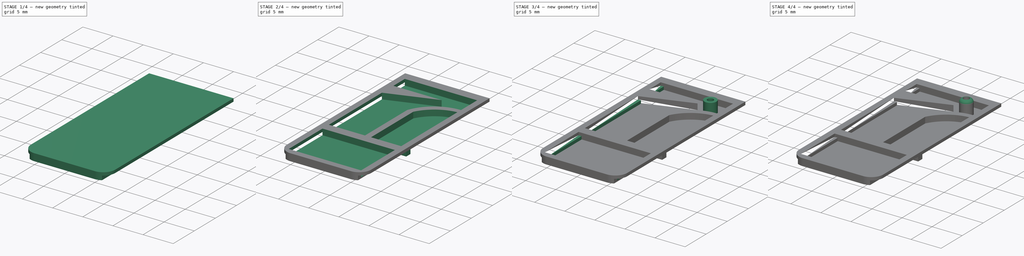
[diagram: build sequence overview — one tinted view per stage of 4, left to right]
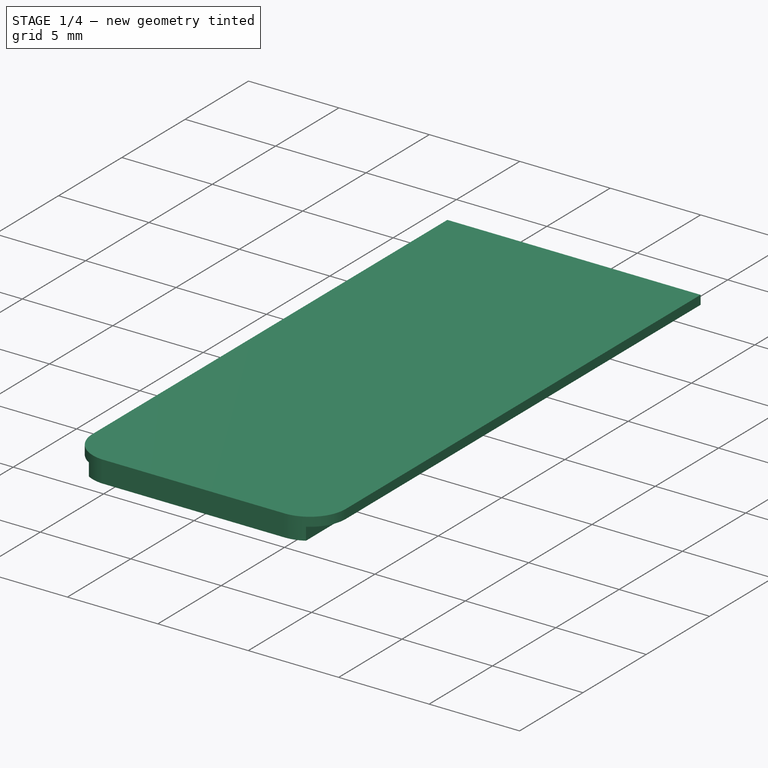
[diagram: stage 1 of 4 — iso view after this stage's code; geometry added in this stage tinted green]
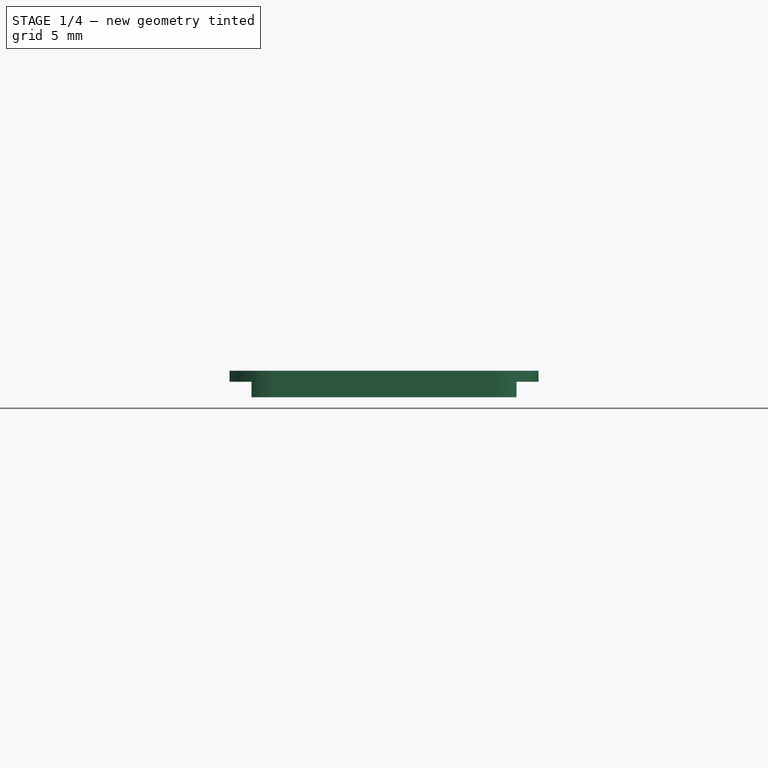
[diagram: stage 1 of 4 — front view after this stage's code; geometry added in this stage tinted green]
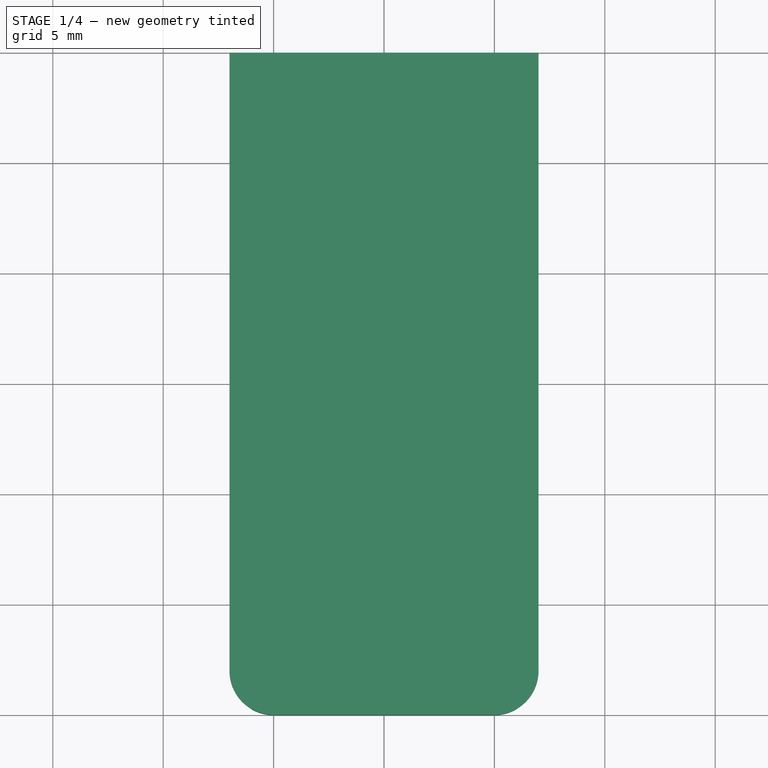
[diagram: stage 1 of 4 — top view after this stage's code; geometry added in this stage tinted green]
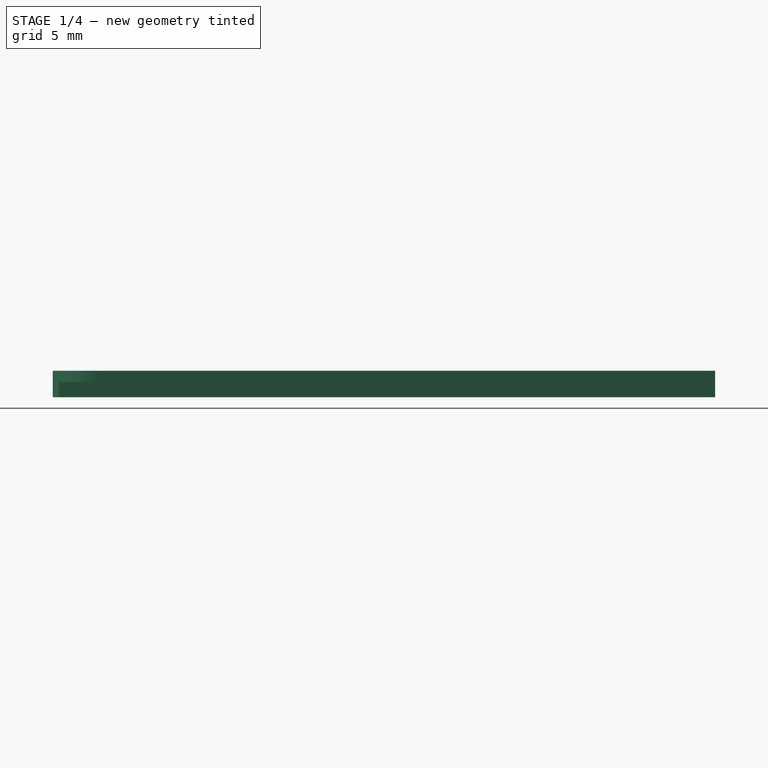
[diagram: stage 1 of 4 — right view after this stage's code; geometry added in this stage tinted green]
FCSTD DOCUMENT  (FreeCAD 1.0R39285 (Git))
Label: Pieza pequeña
License: All rights reserved
LicenseURL: https://en.wikipedia.org/wiki/All_rights_reserved
objects: Sketcher::SketchObject×7, PartDesign::Pad×5, PartDesign::Plane×4, PartDesign::Fillet×1, PartDesign::Pocket×1, PartDesign::Mirrored×1, PartDesign::Revolution×1, PartDesign::Body×1
note: 45 computed .brp shape members not serialized (recipe doc carries the construction recipe); baked Part::Feature solids carry a one-line shape summary decoded from their .brp

FEATURE [Sketcher::SketchObject] Sketch
  ArcFitTolerance = 1e-06
  AttachmentSupport = -> [XZ_Plane]
  FullyConstrained = true
  MakeInternals = false
  MapMode = 5
  Placement = pos=(0,0,0) rot=(1,0,0;1.5708rad)
  sketch-geometry (13):
    g0: LineSegment StartX=-6 StartY=-0.6 StartZ=0 EndX=6 EndY=-0.6 EndZ=0
    g1: LineSegment StartX=6 StartY=-0.6 StartZ=0 EndX=6 EndY=0.6 EndZ=0
    g2: LineSegment StartX=6 StartY=0.6 StartZ=0 EndX=-6 EndY=0.6 EndZ=0
    g3: LineSegment StartX=-6 StartY=0.6 StartZ=0 EndX=-6 EndY=-0.6 EndZ=0
    g4: GeomPoint [constr] X=0 Y=0 Z=0
    g5: LineSegment StartX=6 StartY=0.6 StartZ=0 EndX=6 EndY=0.1 EndZ=0
    g6: LineSegment StartX=6 StartY=0.1 StartZ=0 EndX=7 EndY=0.1 EndZ=0
    g7: LineSegment StartX=7 StartY=0.1 StartZ=0 EndX=7 EndY=0.6 EndZ=0
    g8: LineSegment StartX=7 StartY=0.6 StartZ=0 EndX=6 EndY=0.6 EndZ=0
    g9: LineSegment StartX=-6 StartY=0.6 StartZ=0 EndX=-7 EndY=0.6 EndZ=0
    g10: LineSegment StartX=-7 StartY=0.6 StartZ=0 EndX=-7 EndY=0.1 EndZ=0
    g11: LineSegment StartX=-7 StartY=0.1 StartZ=0 EndX=-6 EndY=0.1 EndZ=0
    g12: LineSegment StartX=-6 StartY=0.1 StartZ=0 EndX=-6 EndY=0.6 EndZ=0
  constraints (35):
    c: Coincident(g0,g1)
    c: Coincident(g1,g2)
    c: Coincident(g3,g0)
    c: Horizontal(g0)
    c: Horizontal(g2)
    c: Vertical(g1)
    c: Vertical(g3)
    c: Symmetric(g2,g0,g4)
    c: Coincident(g4,g-1)
    c: DistanceX(g0,g0) = 12
    c: Distance(g0,g2) = 1.2
    c: Coincident(g5,g6)
    c: Coincident(g6,g7)
    c: Coincident(g7,g8)
    c: Coincident(g8,g5)
    c: Vertical(g5)
    c: Vertical(g7)
    c: Horizontal(g6)
    c: Horizontal(g8)
    c: Distance(g5,g7) = 1
    c: Distance(g6,g8) = 0.5
    c: Coincident(g5,g1)
    c: Coincident(g9,g10)
    c: Coincident(g10,g11)
    c: Coincident(g11,g12)
    c: Coincident(g12,g9)
    c: Horizontal(g9)
    c: Horizontal(g11)
    c: Vertical(g10)
    c: Vertical(g12)
    c: Distance(g10,g12) = 1
    c: Distance(g9,g11) = 0.5
    c: Coincident(g9,g2)
    c: Distance(g6,g10) = 14
    c: DistanceY(g3,g3) = 1.2
FEATURE [PartDesign::Pad] Pad
  Direction = (0,-1,2e-16)
  Length = 30
  Length2 = 10
  Midplane = true
  Placement = pos=(0,0,0) rot=(1,0,0;1.5708rad)
  Profile = -> Sketch
  ReferenceAxis = -> Sketch [N_Axis]
  Refine = true
  Suppressed = false
  Type = 0
FEATURE [PartDesign::Fillet] Fillet
  Base = -> Pad [Edge10,Edge17]
  BaseFeature = -> Pad
  Placement = pos=(0,0,0) rot=(1,0,0;1.5708rad)
  Radius = 2
  Refine = true
  SupportTransform = false
  Suppressed = false
  UseAllEdges = false
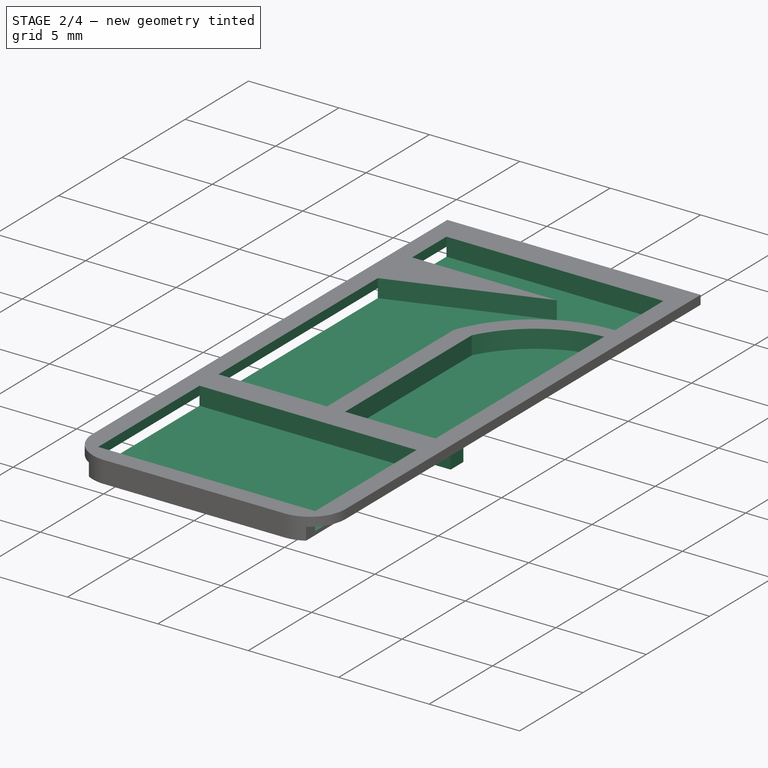
[diagram: stage 2 of 4 — iso view after this stage's code; geometry added in this stage tinted green]
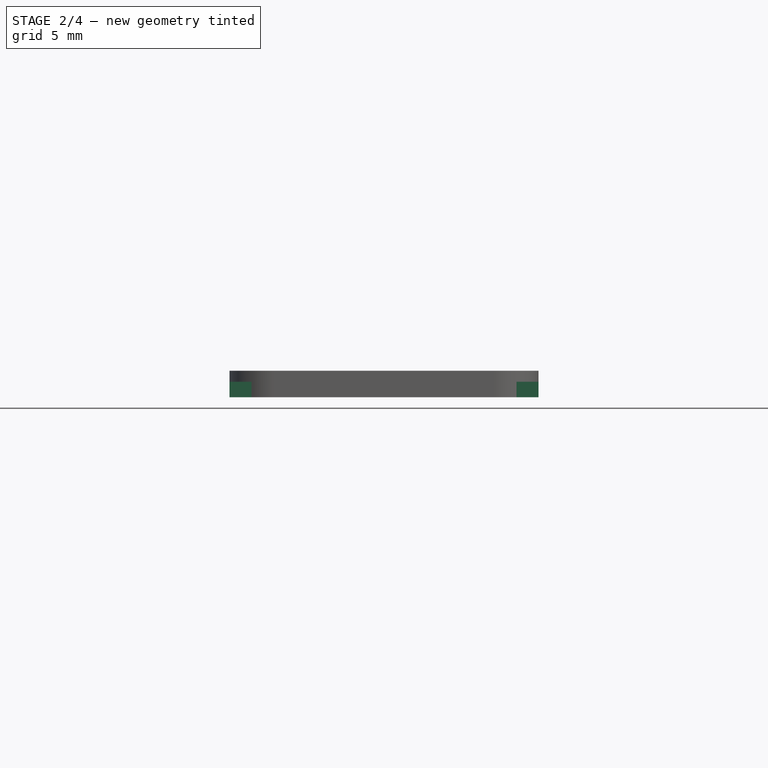
[diagram: stage 2 of 4 — front view after this stage's code; geometry added in this stage tinted green]
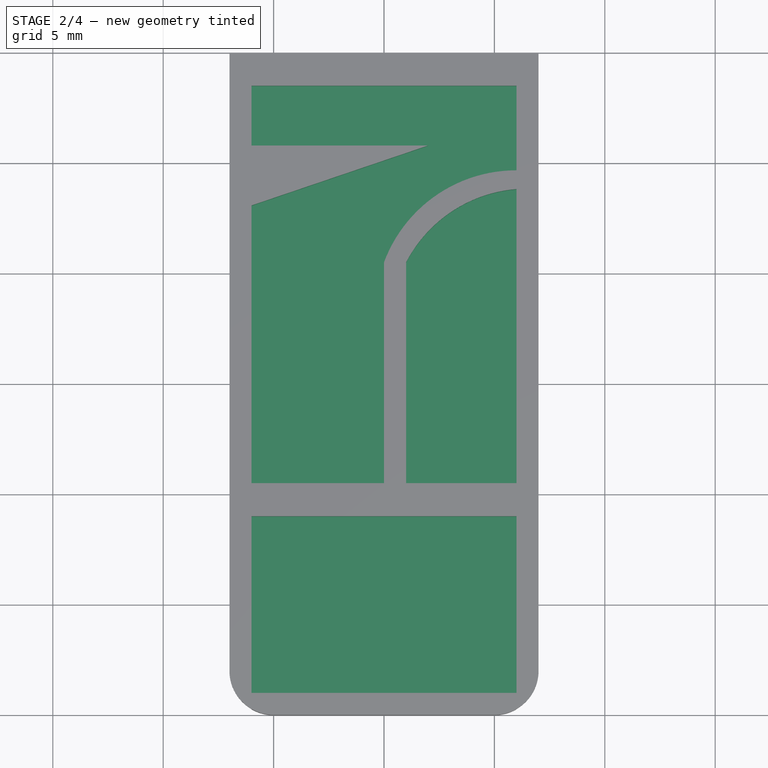
[diagram: stage 2 of 4 — top view after this stage's code; geometry added in this stage tinted green]
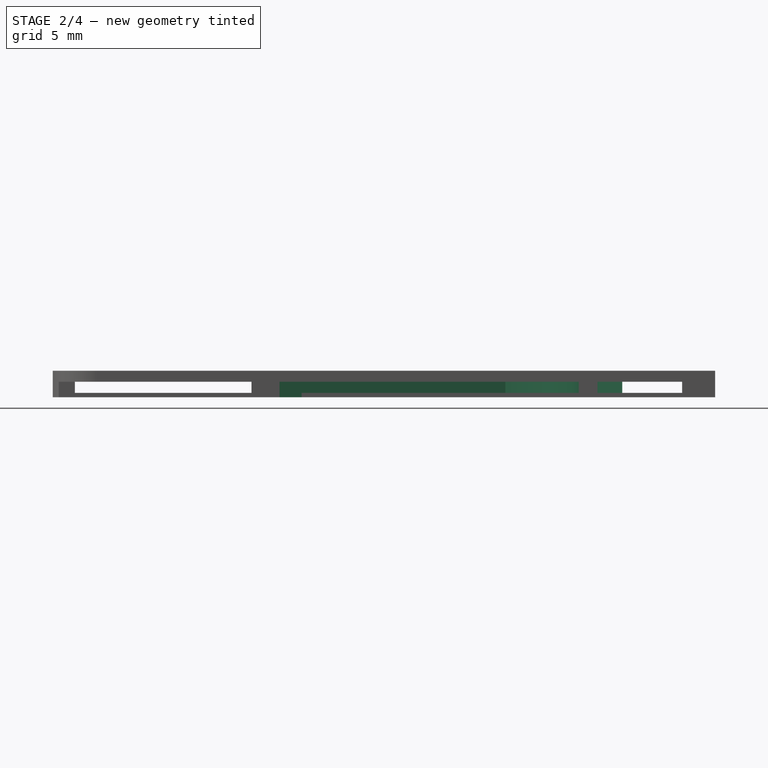
[diagram: stage 2 of 4 — right view after this stage's code; geometry added in this stage tinted green]
FEATURE [PartDesign::Plane] DatumPlane
  AttachmentSupport = -> [Fillet]
  Length = 60
  MapMode = 5
  Placement = pos=(0,0,0.1) rot=(1,0,0;3.14159rad)
  ResizeMode = 0
  Width = 60
FEATURE [Sketcher::SketchObject] Sketch001
  ArcFitTolerance = 1e-06
  AttachmentSupport = -> [DatumPlane]
  ExternalGeometry = -> [Fillet]
  FullyConstrained = true
  MakeInternals = false
  MapMode = 5
  Placement = pos=(0,0,0.1) rot=(1,0,0;3.14159rad)
  sketch-geometry (8):
    g0: LineSegment StartX=-6 StartY=4.73205 StartZ=0 EndX=-6 EndY=3.73205 EndZ=0
    g1: LineSegment StartX=-6 StartY=3.73205 StartZ=0 EndX=-7 EndY=3.73205 EndZ=0
    g2: LineSegment StartX=-7 StartY=3.73205 StartZ=0 EndX=-7 EndY=4.73205 EndZ=0
    g3: LineSegment StartX=-7 StartY=4.73205 StartZ=0 EndX=-6 EndY=4.73205 EndZ=0
    g4: LineSegment StartX=6 StartY=4.73205 StartZ=0 EndX=6 EndY=3.73205 EndZ=0
    g5: LineSegment StartX=6 StartY=3.73205 StartZ=0 EndX=7 EndY=3.73205 EndZ=0
    g6: LineSegment StartX=7 StartY=3.73205 StartZ=0 EndX=7 EndY=4.73205 EndZ=0
    g7: LineSegment StartX=7 StartY=4.73205 StartZ=0 EndX=6 EndY=4.73205 EndZ=0
  constraints (24):
    c: Coincident(g0,g1)
    c: Coincident(g1,g2)
    c: Coincident(g2,g3)
    c: Coincident(g3,g0)
    c: Vertical(g0)
    c: Vertical(g2)
    c: Horizontal(g1)
    c: Horizontal(g3)
    c: Distance(g0,g2) = 1
    c: Distance(g1,g3) = 1
    c: PointOnObject(g0,g-3)
    c: Distance(g-3,g1) = 11
    c: Coincident(g4,g5)
    c: Coincident(g5,g6)
    c: Coincident(g6,g7)
    c: Coincident(g7,g4)
    c: Vertical(g4)
    c: Vertical(g6)
    c: Horizontal(g5)
    c: Horizontal(g7)
    c: Distance(g4,g6) = 1
    c: Distance(g5,g7) = 1
    c: Distance(g-5,g7) = 10
    c: Distance(g-2,g4) = 6
FEATURE [PartDesign::Pad] Pad001
  BaseFeature = -> Fillet
  Direction = (0,0,-1)
  Length = 10
  Length2 = 10
  Placement = pos=(0,0,0) rot=(1,0,0;1.5708rad)
  Profile = -> Sketch001
  ReferenceAxis = -> Sketch001 [N_Axis]
  Refine = true
  Suppressed = false
  Type = 3
  UpToFace = -> Fillet [Face2]
FEATURE [Sketcher::SketchObject] Sketch002
  ArcFitTolerance = 1e-06
  AttachmentSupport = -> [Pad001]
  ExternalGeometry = -> [Pad001]
  FullyConstrained = false
  MakeInternals = false
  MapMode = 5
  Placement = pos=(0,3e-16,0.6) rot=(0,0,1;3.14159rad)
  sketch-geometry (19):
    g0: LineSegment StartX=-6 StartY=14 StartZ=0 EndX=-6 EndY=6 EndZ=0
    g1: LineSegment StartX=-6 StartY=6 StartZ=0 EndX=6 EndY=6 EndZ=0
    g2: LineSegment StartX=6 StartY=6 StartZ=0 EndX=6 EndY=14 EndZ=0
    g3: LineSegment StartX=6 StartY=14 StartZ=0 EndX=-6 EndY=14 EndZ=0
    g4: LineSegment [constr] StartX=-6 StartY=6 StartZ=0 EndX=-6 EndY=4.5 EndZ=0
    g5: LineSegment StartX=-6 StartY=4.5 StartZ=0 EndX=-6 EndY=-8.82 EndZ=0
    g6: LineSegment StartX=-6 StartY=-13.5 StartZ=0 EndX=6 EndY=-13.5 EndZ=0
    g7: LineSegment StartX=6 StartY=-13.5 StartZ=0 EndX=6 EndY=-10.7926 EndZ=0
    g8: LineSegment StartX=-1 StartY=4.5 StartZ=0 EndX=-1 EndY=-5.5 EndZ=0
    g9: ArcOfCircle CenterX=-6.49471 CenterY=-2.64989 CenterZ=0 NormalX=0 NormalY=0 NormalZ=1 AngleXU=0 Radius=6.18991 StartAngle=4.7924 EndAngle=5.80469
    g10: LineSegment StartX=-8.9e-15 StartY=4.5 StartZ=0 EndX=-8.9e-15 EndY=-5.5 EndZ=0
    g11: LineSegment [constr] StartX=-6 StartY=-9.67 StartZ=0 EndX=-6 EndY=-9.82111 EndZ=0
    g12: ArcOfCircle CenterX=-5.99334 CenterY=-3.27804 CenterZ=0 NormalX=0 NormalY=0 NormalZ=1 AngleXU=0 Radius=6.39197 StartAngle=4.71135 EndAngle=5.92816
    g13: LineSegment StartX=-6 StartY=-9.67 StartZ=0 EndX=-6 EndY=-13.5 EndZ=0
    g14: LineSegment StartX=6 StartY=-10.7926 StartZ=0 EndX=-2 EndY=-10.7926 EndZ=0
    g15: LineSegment StartX=6 StartY=-8.07733 StartZ=0 EndX=-2 EndY=-10.7926 EndZ=0
    g16: LineSegment StartX=6 StartY=-8.07733 StartZ=0 EndX=6 EndY=4.5 EndZ=0
    g17: LineSegment StartX=-6 StartY=4.5 StartZ=0 EndX=-1 EndY=4.5 EndZ=0
    g18: LineSegment StartX=-8.9e-15 StartY=4.5 StartZ=0 EndX=6 EndY=4.5 EndZ=0
  constraints (49):
    c: Coincident(g0,g1)
    c: Coincident(g1,g2)
    c: Coincident(g2,g3)
    c: Coincident(g3,g0)
    c: Vertical(g0)
    c: Vertical(g2)
    c: Horizontal(g1)
    c: Horizontal(g3)
    c: Distance(g-3,g3) = 1
    c: DistanceX(g1,g1) = 12
    c: Distance(g-2,g2) = 6
    c: DistanceY(g0,g0) = 8
    c: Distance(g4) = 1.5
    c: Coincident(g4,g0)
    c: Vertical(g4)
    c: Coincident(g13,g6)
    c: Coincident(g6,g7)
    c: Vertical(g5)
    c: Vertical(g7)
    c: Horizontal(g6)
    c: Distance(g5,g16) = 12
    c: Distance(g6,g5) = 18
    c: Coincident(g5,g4)
    c: Distance(g8) = 10
    c: Distance(g10) = 10
    c: Distance(g10,g8) = 1
    c: Vertical(g10)
    c: Vertical(g8)
    c: Distance(g-2,g8) = 1
    c: PointOnObject(g11,g13)
    c: Vertical(g11)
    c: Coincident(g12,g10)
    c: PointOnObject(g12,g13)
    c: Coincident(g9,g8)
    c: PointOnObject(g5,g9)
    c: PointOnObject(g13,g12)
    c: PointOnObject(g11,g12)
    c: Distance(g14) = 8
    c: Coincident(g7,g14)
    c: PointOnObject(g16,g15)
    c: Coincident(g17,g4)
    c: Coincident(g17,g8)
    c: Horizontal(g17)
    c: Coincident(g18,g10)
    c: Coincident(g18,g16)
    c: Horizontal(g18)
    c: DistanceY(g5,g5) = 13.32
    c: DistanceX(g6,g6) = 12
    c: Distance(g13,g13) = 3.83
FEATURE [PartDesign::Pocket] Pocket
  BaseFeature = -> Pad001
  Direction = (0,0,-1)
  Length = 1
  Length2 = 5
  Placement = pos=(0,0,0) rot=(1,0,0;1.5708rad)
  Profile = -> Sketch002
  ReferenceAxis = -> Sketch002 [N_Axis]
  Refine = true
  Suppressed = false
  Type = 0
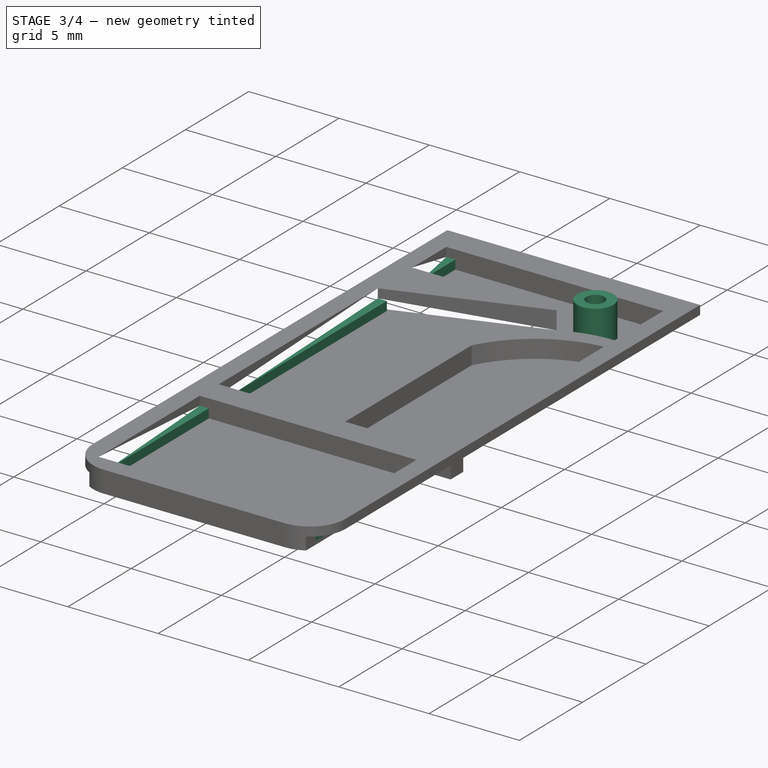
[diagram: stage 3 of 4 — iso view after this stage's code; geometry added in this stage tinted green]
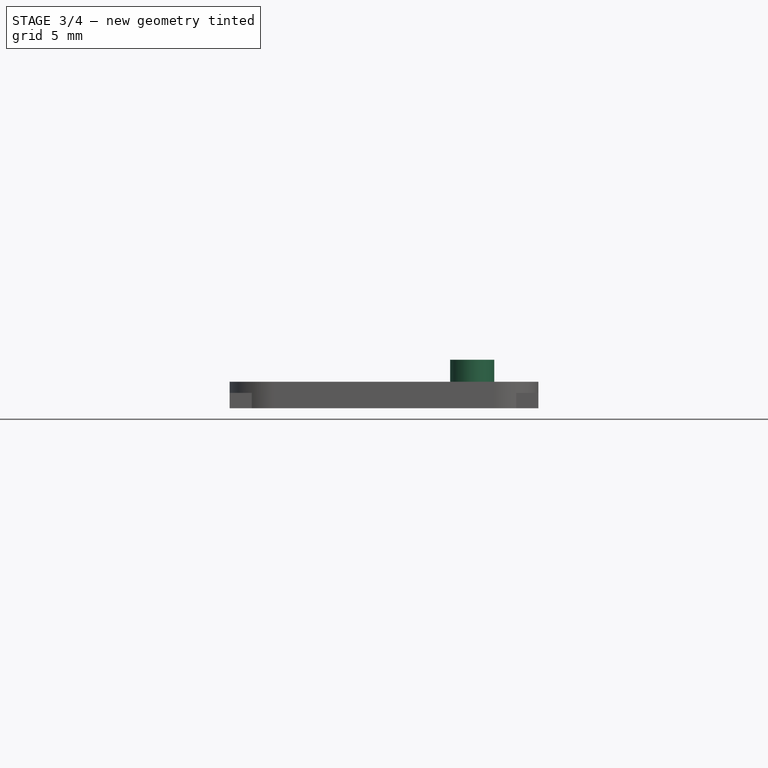
[diagram: stage 3 of 4 — front view after this stage's code; geometry added in this stage tinted green]
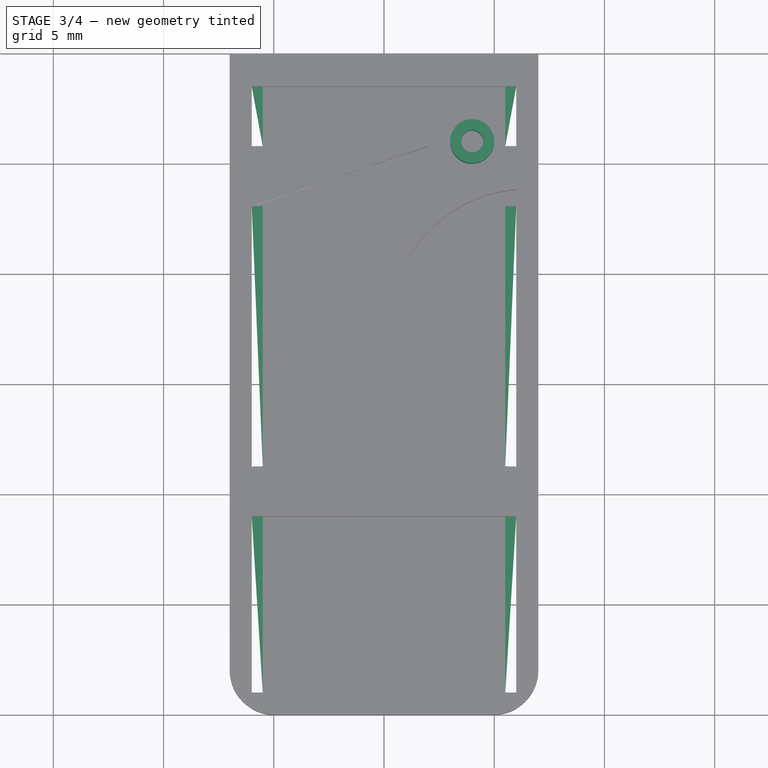
[diagram: stage 3 of 4 — top view after this stage's code; geometry added in this stage tinted green]
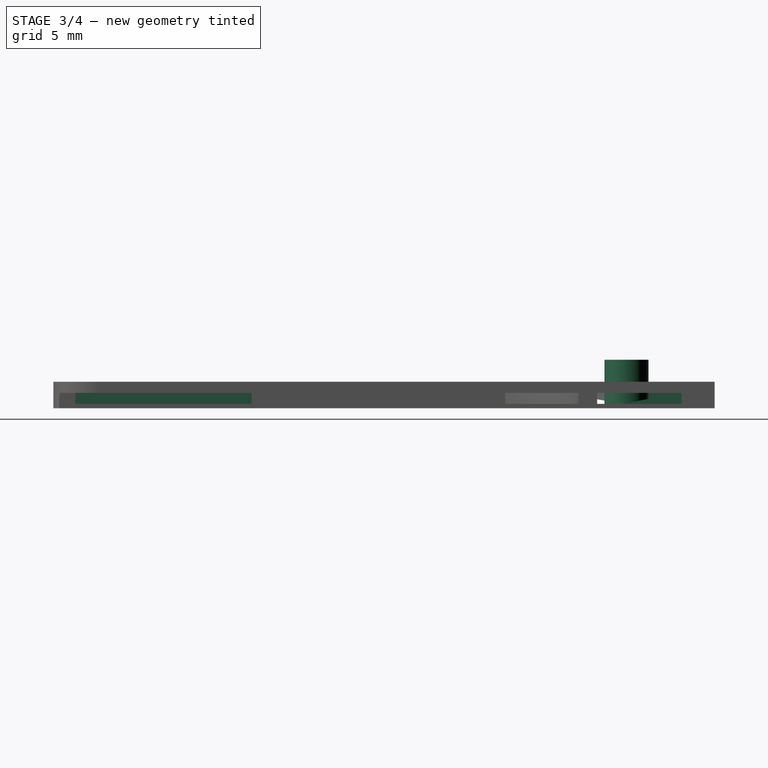
[diagram: stage 3 of 4 — right view after this stage's code; geometry added in this stage tinted green]
FEATURE [PartDesign::Plane] DatumPlane001
  AttachmentSupport = -> [Pocket]
  Length = 60
  MapMode = 5
  Placement = pos=(-6,0,0) rot=(0.707107,0,0.707107;3.14159rad)
  ResizeMode = 0
  Width = 60
FEATURE [Sketcher::SketchObject] Sketch003
  ArcFitTolerance = 1e-06
  AttachmentSupport = -> [Pocket]
  ExternalGeometry = -> [Pocket]
  FullyConstrained = true
  MakeInternals = false
  MapMode = 5
  Placement = pos=(-6,0,0) rot=(0.707107,0,0.707107;3.14159rad)
  sketch-geometry (12):
    g0: LineSegment StartX=-0.4 StartY=14 StartZ=0 EndX=-0.4 EndY=6 EndZ=0
    g1: LineSegment StartX=-0.4 StartY=6 StartZ=0 EndX=0.1 EndY=6 EndZ=0
    g2: LineSegment StartX=0.1 StartY=6 StartZ=0 EndX=0.1 EndY=14 EndZ=0
    g3: LineSegment StartX=0.1 StartY=14 StartZ=0 EndX=-0.4 EndY=14 EndZ=0
    g4: LineSegment StartX=-0.4 StartY=-10.7926 StartZ=0 EndX=-0.4 EndY=-13.5 EndZ=0
    g5: LineSegment StartX=-0.4 StartY=-13.5 StartZ=0 EndX=0.1 EndY=-13.5 EndZ=0
    g6: LineSegment StartX=0.1 StartY=-13.5 StartZ=0 EndX=0.1 EndY=-10.7926 EndZ=0
    g7: LineSegment StartX=0.1 StartY=-10.7926 StartZ=0 EndX=-0.4 EndY=-10.7926 EndZ=0
    g8: LineSegment StartX=0.1 StartY=-8.07733 StartZ=0 EndX=0.1 EndY=3.73205 EndZ=0
    g9: LineSegment StartX=0.1 StartY=3.73205 StartZ=0 EndX=-0.4 EndY=3.73205 EndZ=0
    g10: LineSegment StartX=-0.4 StartY=3.73205 StartZ=0 EndX=-0.4 EndY=-8.07733 EndZ=0
    g11: LineSegment StartX=-0.4 StartY=-8.07733 StartZ=0 EndX=0.1 EndY=-8.07733 EndZ=0
  constraints (30):
    c: Coincident(g0,g1)
    c: Coincident(g1,g2)
    c: Coincident(g2,g3)
    c: Coincident(g3,g0)
    c: Vertical(g0)
    c: Vertical(g2)
    c: Horizontal(g1)
    c: Horizontal(g3)
    c: Coincident(g0,g-4)
    c: Coincident(g1,g-6)
    c: Coincident(g4,g5)
    c: Coincident(g5,g6)
    c: Coincident(g6,g7)
    c: Coincident(g7,g4)
    c: Vertical(g4)
    c: Vertical(g6)
    c: Horizontal(g5)
    c: Horizontal(g7)
    c: Coincident(g4,g-12)
    c: Coincident(g5,g-14)
    c: Coincident(g8,g9)
    c: Coincident(g9,g10)
    c: Coincident(g10,g11)
    c: Coincident(g11,g8)
    c: Vertical(g8)
    c: Vertical(g10)
    c: Horizontal(g9)
    c: Horizontal(g11)
    c: Coincident(g8,g-10)
    c: Coincident(g9,g-9)
FEATURE [PartDesign::Pad] Pad002
  BaseFeature = -> Pocket
  Direction = (1,0,-2e-16)
  Length = 0.5
  Length2 = 10
  Placement = pos=(0,0,0) rot=(1,0,0;1.5708rad)
  Profile = -> Sketch003
  ReferenceAxis = -> Sketch003 [N_Axis]
  Refine = true
  Suppressed = false
  Type = 0
FEATURE [PartDesign::Mirrored] Mirrored
  BaseFeature = -> Pad002
  MirrorPlane = -> YZ_Plane
  Originals = -> [Pad002]
  Placement = pos=(0,0,0) rot=(1,0,0;1.5708rad)
  Refine = true
  Suppressed = false
  TransformMode = 0
FEATURE [Sketcher::SketchObject] Sketch004
  ArcFitTolerance = 1e-06
  AttachmentSupport = -> [Mirrored]
  FullyConstrained = true
  MakeInternals = false
  MapMode = 5
  Placement = pos=(0,0,-0.4) rot=(0,0,1;3.14159rad)
  sketch-geometry (2):
    g0: Circle CenterX=-4 CenterY=-11 CenterZ=0 NormalX=0 NormalY=0 NormalZ=1 AngleXU=0 Radius=1
    g1: Circle CenterX=-4 CenterY=-11 CenterZ=0 NormalX=0 NormalY=0 NormalZ=1 AngleXU=0 Radius=0.5
  constraints (5):
    c: Diameter(g1) = 1
    c: Coincident(g1,g0)
    c: Diameter(g0) = 2
    c: DistanceX(g0,g-1) = 4
    c: DistanceY(g0,g-1) = 11
FEATURE [PartDesign::Pad] Pad003
  BaseFeature = -> Mirrored
  Direction = (0,0,1)
  Length = 2
  Length2 = 10
  Placement = pos=(0,0,0) rot=(1,0,0;1.5708rad)
  Profile = -> Sketch004
  ReferenceAxis = -> Sketch004 [N_Axis]
  Refine = true
  Suppressed = false
  Type = 0
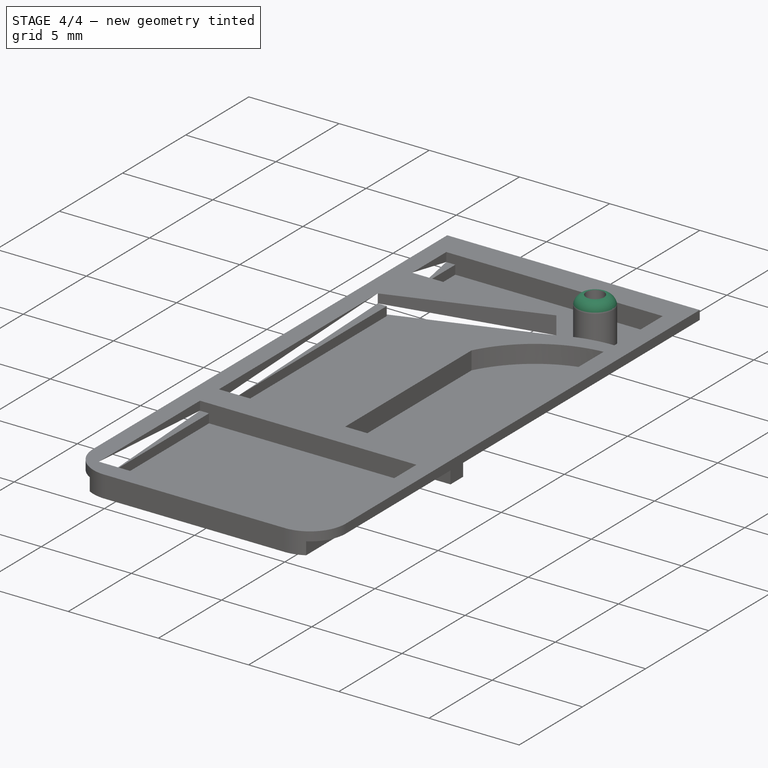
[diagram: stage 4 of 4 — iso view after this stage's code; geometry added in this stage tinted green]
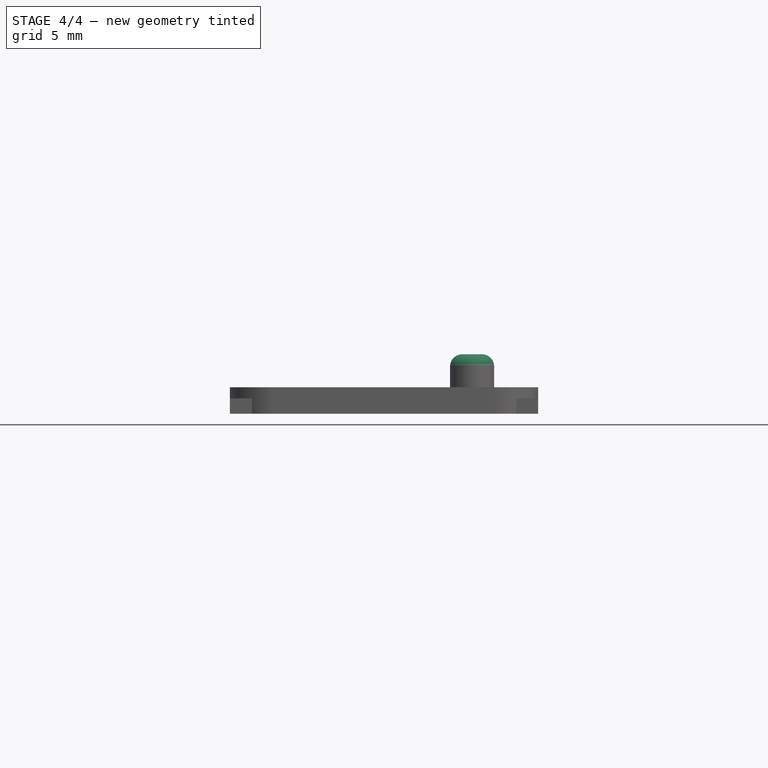
[diagram: stage 4 of 4 — front view after this stage's code; geometry added in this stage tinted green]
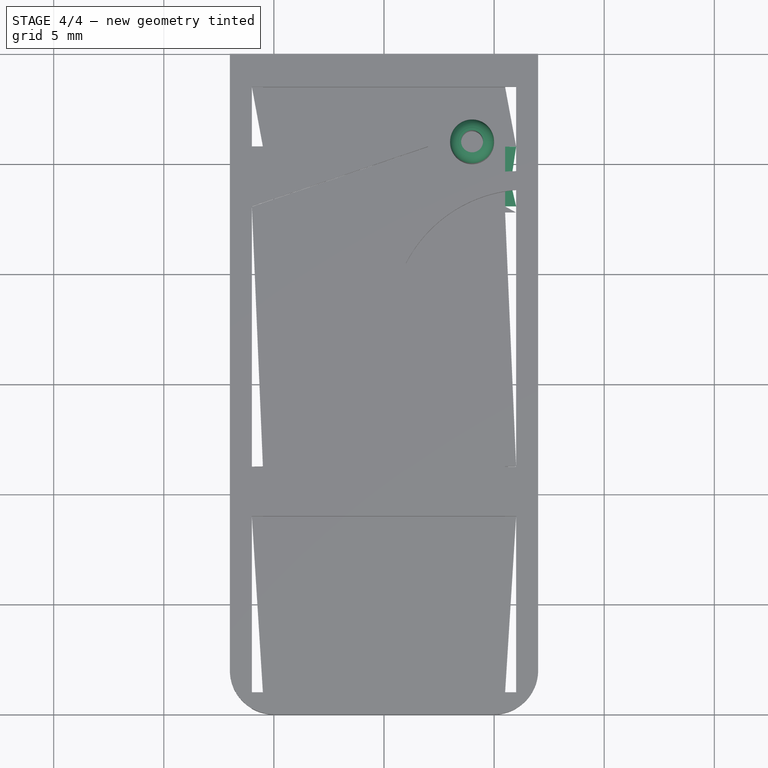
[diagram: stage 4 of 4 — top view after this stage's code; geometry added in this stage tinted green]
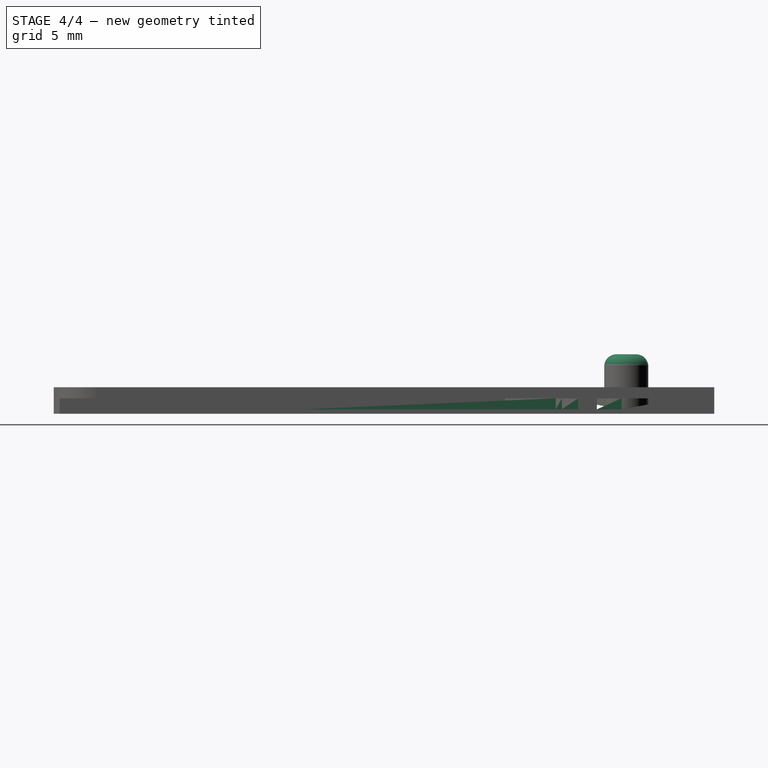
[diagram: stage 4 of 4 — right view after this stage's code; geometry added in this stage tinted green]
FEATURE [PartDesign::Plane] DatumPlane002
  AttachmentOffset = pos=(0,0,-11) rot=(0,0,1;0rad)
  AttachmentSupport = -> [XZ_Plane]
  Length = 60
  MapMode = 5
  Placement = pos=(0,11,-2.4e-15) rot=(1,0,0;1.5708rad)
  ResizeMode = 0
  Width = 60
FEATURE [Sketcher::SketchObject] Sketch005
  ArcFitTolerance = 1e-06
  AttachmentSupport = -> [DatumPlane002]
  ExternalGeometry = -> [Pad003]
  FullyConstrained = false
  MakeInternals = false
  MapMode = 5
  Placement = pos=(0,11,-2.4e-15) rot=(1,0,0;1.5708rad)
  sketch-geometry (3):
    g0: LineSegment StartX=4.5 StartY=1.6 StartZ=0 EndX=4.5 EndY=2.1 EndZ=0
    g1: ArcOfCircle CenterX=4.44219 CenterY=1.54219 CenterZ=0 NormalX=0 NormalY=0 NormalZ=1 AngleXU=0 Radius=0.560796 StartAngle=0.103267 EndAngle=1.46753
    g2: LineSegment StartX=4.5 StartY=1.6 StartZ=0 EndX=5 EndY=1.6 EndZ=0
  constraints (7):
    c: Distance(g0) = 0.5
    c: Coincident(g0,g-3)
    c: Vertical(g0)
    c: Coincident(g1,g-4)
    c: Coincident(g1,g0)
    c: Coincident(g2,g0)
    c: Coincident(g2,g-4)
FEATURE [PartDesign::Revolution] Revolution
  Angle = 360
  Angle2 = 60
  Axis = (0,0,1)
  Base = (4,11,1.6)
  BaseFeature = -> Pad003
  Placement = pos=(0,0,0) rot=(1,0,0;1.5708rad)
  Profile = -> Sketch005
  ReferenceAxis = -> Pad003 [Edge174]
  Refine = true
  Reversed = true
  Suppressed = false
  Type = 0
FEATURE [PartDesign::Plane] DatumPlane003
  AttachmentSupport = -> [Revolution]
  Length = 60
  MapMode = 5
  Placement = pos=(6,0,0) rot=(0.707107,0,0.707107;3.14159rad)
  ResizeMode = 0
  Width = 60
FEATURE [Sketcher::SketchObject] Sketch006
  ArcFitTolerance = 1e-06
  AttachmentSupport = -> [DatumPlane003]
  FullyConstrained = true
  MakeInternals = false
  MapMode = 5
  Placement = pos=(6,0,0) rot=(0.707107,0,0.707107;3.14159rad)
  sketch-geometry (8):
    g0: LineSegment StartX=-0.4 StartY=-7.8 StartZ=0 EndX=-0.4 EndY=-9 EndZ=0
    g1: LineSegment StartX=-0.4 StartY=-9 StartZ=0 EndX=0.1 EndY=-9 EndZ=0
    g2: LineSegment StartX=0.1 StartY=-9 StartZ=0 EndX=0.1 EndY=-7.8 EndZ=0
    g3: LineSegment StartX=0.1 StartY=-7.8 StartZ=0 EndX=-0.4 EndY=-7.8 EndZ=0
    g4: LineSegment StartX=-0.4 StartY=-9.5 StartZ=0 EndX=-0.4 EndY=-10.8 EndZ=0
    g5: LineSegment StartX=-0.4 StartY=-10.8 StartZ=0 EndX=0.1 EndY=-10.8 EndZ=0
    g6: LineSegment StartX=0.1 StartY=-10.8 StartZ=0 EndX=0.1 EndY=-9.5 EndZ=0
    g7: LineSegment StartX=0.1 StartY=-9.5 StartZ=0 EndX=-0.4 EndY=-9.5 EndZ=0
  constraints (25):
    c: Coincident(g1,g2)
    c: Coincident(g2,g3)
    c: Coincident(g3,g0)
    c: Vertical(g0)
    c: Vertical(g2)
    c: Horizontal(g1)
    c: Horizontal(g3)
    c: Coincident(g4,g5)
    c: Coincident(g5,g6)
    c: Coincident(g6,g7)
    c: Coincident(g7,g4)
    c: Vertical(g4)
    c: Vertical(g6)
    c: Horizontal(g5)
    c: Horizontal(g7)
    c: DistanceX(g3,g3) = 0.5
    c: DistanceY(g2,g2) = 1.2
    c: DistanceX(g1,g1) = 0.5
    c: DistanceX(g7,g7) = 0.5
    c: DistanceY(g6,g6) = 1.3
    c: Distance(g-2,g6) = 0.1
    c: Distance(g-2,g2) = 0.1
    c: Distance(g-1,g3) = 7.8
    c: Distance(g-1,g7) = 9.5
    c: Equal(g0,g2)
FEATURE [PartDesign::Pad] Pad004
  BaseFeature = -> Revolution
  Direction = (1,0,-2e-16)
  Length = 0.5
  Length2 = 10
  Placement = pos=(0,0,0) rot=(1,0,0;1.5708rad)
  Profile = -> Sketch006
  ReferenceAxis = -> Sketch006 [N_Axis]
  Refine = true
  Reversed = true
  Suppressed = false
  Type = 0
FEATURE [PartDesign::Body] Body  label="Cuerpo"
  AllowCompound = false
  Group = -> [Sketch,Pad,Fillet,DatumPlane,Sketch001,Pad001,Sketch002,Pocket,DatumPlane001,Sketch003,Pad002,Mirrored,Sketch004,Pad003,DatumPlane002,Sketch005,Revolution,DatumPlane003,Sketch006,Pad004]
  Origin = -> Origin
  Tip = -> Pad004
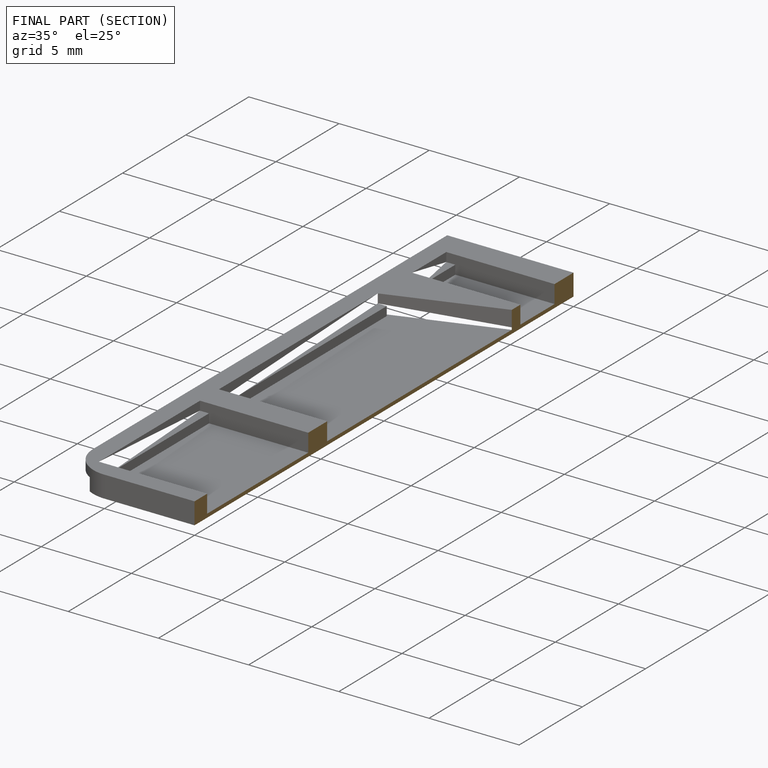
[diagram: finished part — half-section view (interior)]
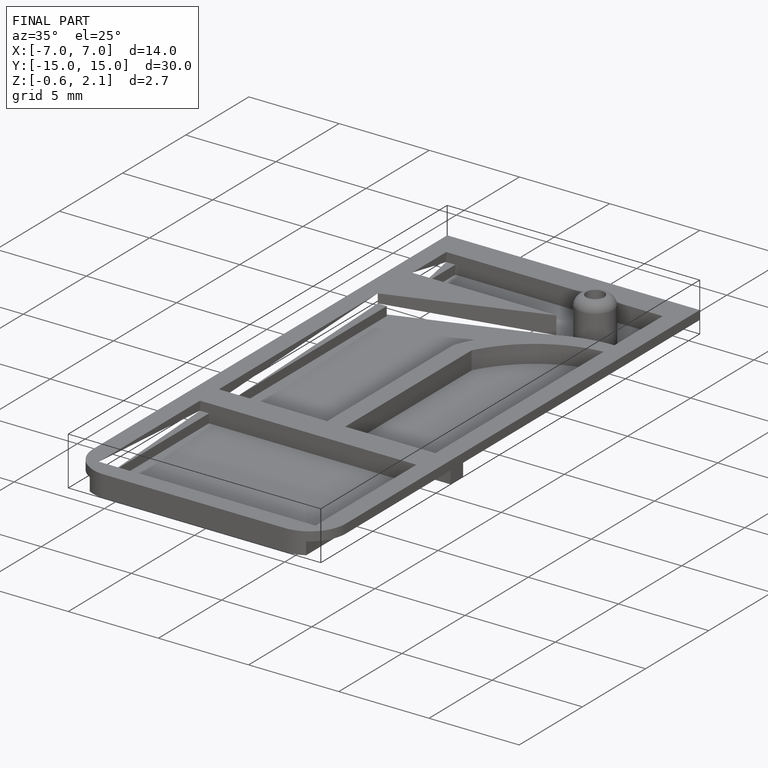
[diagram: finished part — iso view with bounding-box wireframe]
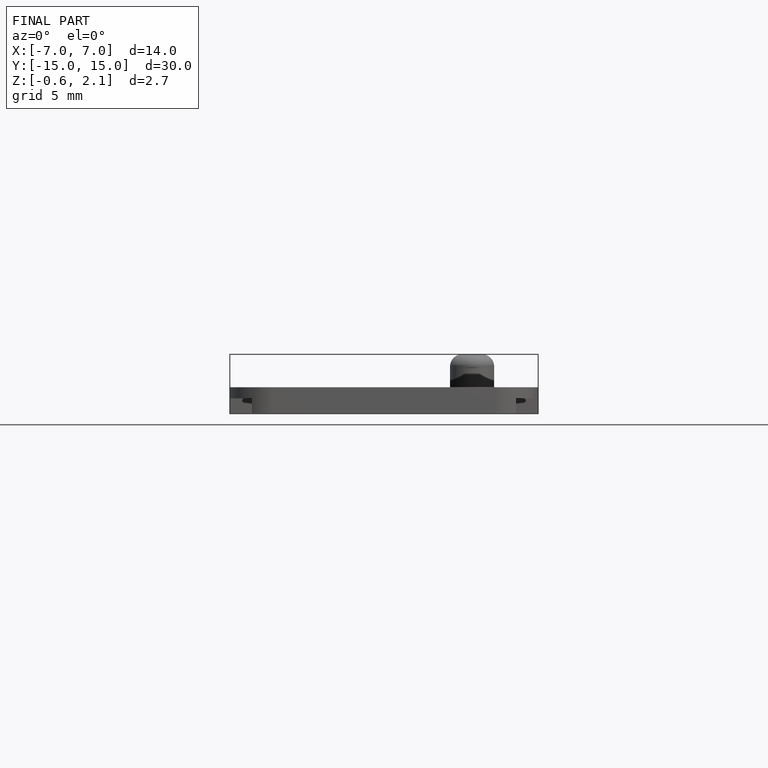
[diagram: finished part — front view with bounding-box wireframe]
